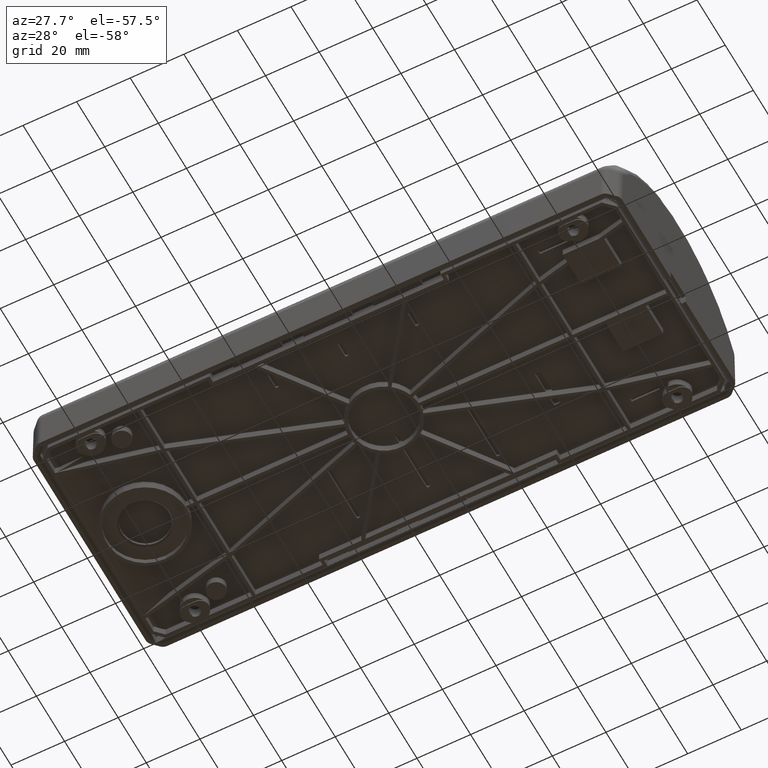
[diagram: clean part render]
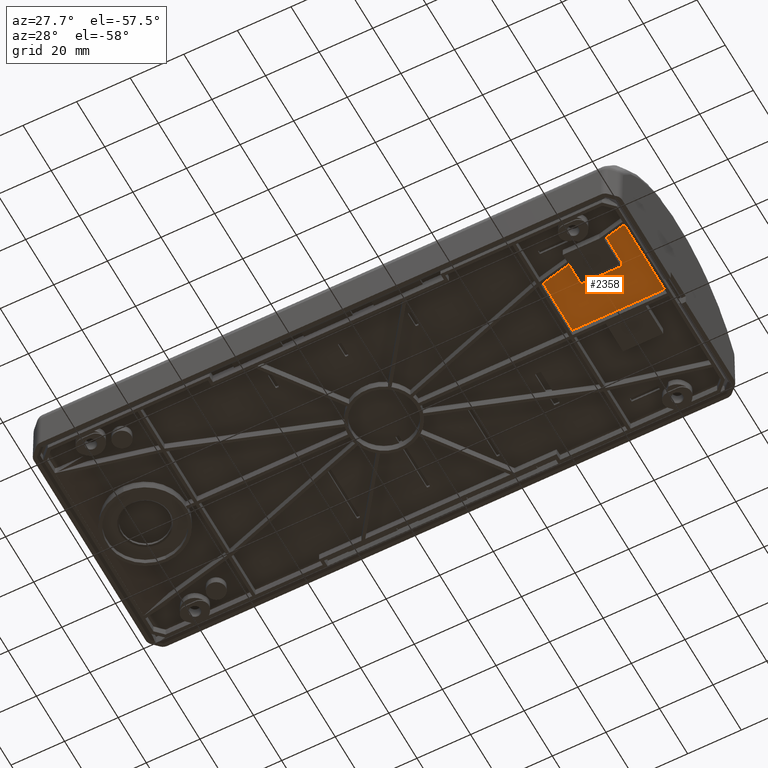
[diagram: same view with one face highlighted and labeled with its STEP entity id]
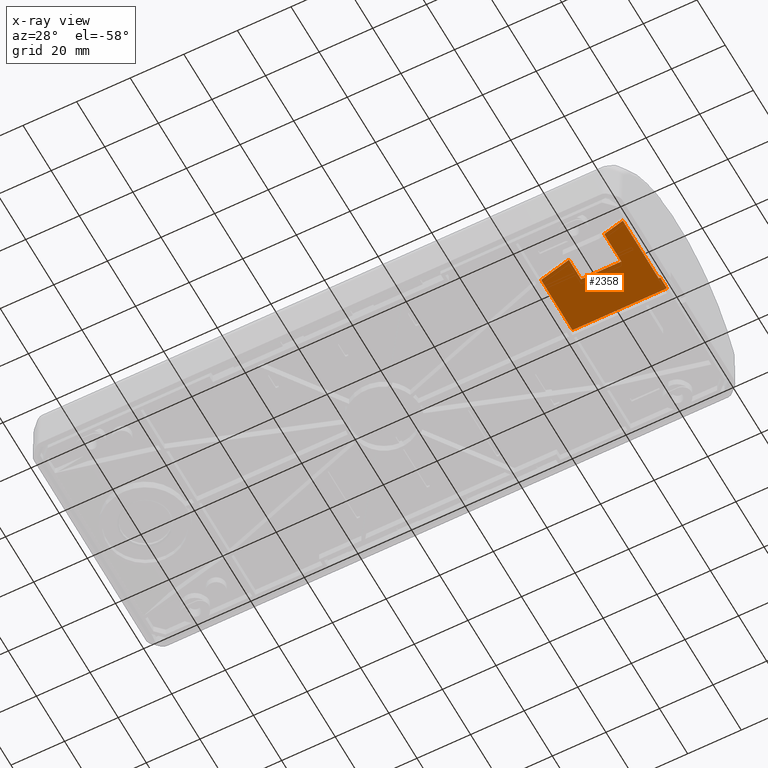
[diagram: x-ray of the same camera — body ghosted, the highlighted face saturated]
A machine part, auxiliary view. The second image highlights one B-rep face of the part: STEP entity #2358.
The next image is the same camera in x-ray: the body ghosted, the highlighted face saturated — about 0% of this face is hidden behind the body in this view.
In plain terms, the highlighted planar face has unit normal (0, 0, -1).
Its self-contained STEP definition (entity closure, byte-faithful):
#2358=ADVANCED_FACE('',(#3582),#2804,.T.);
#2804=PLANE('',#15451);
#3582=FACE_OUTER_BOUND('',#4422,.T.);
#4422=EDGE_LOOP('',(#7901,#7902,#7903,#7904,#7905,#7906,#7907,#7908,#7909,
#7910));
#7901=ORIENTED_EDGE('',*,*,#12124,.F.);
#7902=ORIENTED_EDGE('',*,*,#12125,.T.);
#7903=ORIENTED_EDGE('',*,*,#12126,.F.);
#7904=ORIENTED_EDGE('',*,*,#12113,.F.);
#7905=ORIENTED_EDGE('',*,*,#12110,.F.);
#7906=ORIENTED_EDGE('',*,*,#12107,.F.);
#7907=ORIENTED_EDGE('',*,*,#12104,.F.);
#7908=ORIENTED_EDGE('',*,*,#12100,.F.);
#7909=ORIENTED_EDGE('',*,*,#12116,.F.);
#7910=ORIENTED_EDGE('',*,*,#12122,.F.);
#10112=VERTEX_POINT('',#40678);
#10113=VERTEX_POINT('',#40679);
#10116=VERTEX_POINT('',#40687);
#10118=VERTEX_POINT('',#40693);
#10120=VERTEX_POINT('',#40699);
#10122=VERTEX_POINT('',#40705);
#10124=VERTEX_POINT('',#40711);
#10129=VERTEX_POINT('',#40722);
#10130=VERTEX_POINT('',#40727);
#10131=VERTEX_POINT('',#40729);
#12100=EDGE_CURVE('',#10112,#10113,#13182,.T.);
#12104=EDGE_CURVE('',#10113,#10116,#13186,.T.);
#12107=EDGE_CURVE('',#10116,#10118,#13189,.T.);
#12110=EDGE_CURVE('',#10118,#10120,#13192,.T.);
#12113=EDGE_CURVE('',#10120,#10122,#13195,.T.);
#12116=EDGE_CURVE('',#10124,#10112,#13198,.T.);
#12122=EDGE_CURVE('',#10129,#10124,#13204,.T.);
#12124=EDGE_CURVE('',#10130,#10129,#13206,.T.);
#12125=EDGE_CURVE('',#10130,#10131,#13207,.T.);
#12126=EDGE_CURVE('',#10122,#10131,#13208,.T.);
#13182=LINE('',#40677,#14221);
#13186=LINE('',#40686,#14225);
#13189=LINE('',#40692,#14228);
#13192=LINE('',#40698,#14231);
#13195=LINE('',#40704,#14234);
#13198=LINE('',#40710,#14237);
#13204=LINE('',#40723,#14243);
#13206=LINE('',#40726,#14245);
#13207=LINE('',#40728,#14246);
#13208=LINE('',#40730,#14247);
#14221=VECTOR('',#18275,1.);
#14225=VECTOR('',#18281,1.);
#14228=VECTOR('',#18286,1.);
#14231=VECTOR('',#18291,1.);
#14234=VECTOR('',#18296,1.);
#14237=VECTOR('',#18301,1.);
#14243=VECTOR('',#18309,1.);
#14245=VECTOR('',#18313,1.);
#14246=VECTOR('',#18314,1.);
#14247=VECTOR('',#18315,1.);
#15451=AXIS2_PLACEMENT_3D('',#40731,#18316,#18317);
#18275=DIRECTION('',(0.,-1.,0.));
#18281=DIRECTION('',(0.974370064785235,-0.224951054343865,0.));
#18286=DIRECTION('',(0.,1.,0.));
#18291=DIRECTION('',(1.,0.,0.));
#18296=DIRECTION('',(0.,-1.,0.));
#18301=DIRECTION('',(-1.,0.,0.));
#18309=DIRECTION('',(0.,1.,0.));
#18313=DIRECTION('',(1.,0.,0.));
#18314=DIRECTION('',(0.,-1.,0.));
#18315=DIRECTION('',(0.974370064785235,-0.224951054343866,0.));
#18316=DIRECTION('',(0.,0.,-1.));
#18317=DIRECTION('',(0.,1.,0.));
#40677=CARTESIAN_POINT('',(121.300000000002,-0.598476139256033,4.25));
#40678=CARTESIAN_POINT('',(121.300000000002,-0.598476139256033,4.25));
#40679=CARTESIAN_POINT('',(121.300000000002,-22.7984761392561,4.25));
#40686=CARTESIAN_POINT('',(121.300000000002,-22.7984761392561,4.25));
#40687=CARTESIAN_POINT('',(133.100000000002,-25.5227207945377,4.25));
#40692=CARTESIAN_POINT('',(133.100000000002,-25.5227207945377,4.25));
#40693=CARTESIAN_POINT('',(133.100000000002,-16.8984761392561,4.25));
#40698=CARTESIAN_POINT('',(133.100000000002,-16.8984761392561,4.25));
#40699=CARTESIAN_POINT('',(148.100000000002,-16.8984761392561,4.25));
#40704=CARTESIAN_POINT('',(148.100000000002,-16.8984761392561,4.25));
#40705=CARTESIAN_POINT('',(148.100000000002,-28.9857436614212,4.25));
#40710=CARTESIAN_POINT('',(156.600000000002,-0.598476139256033,4.25));
#40711=CARTESIAN_POINT('',(156.600000000002,-0.598476139256033,4.25));
#40722=CARTESIAN_POINT('',(156.600000000002,-5.29847613925607,4.25));
#40723=CARTESIAN_POINT('',(156.600000000002,-30.9481232859885,4.25));
#40726=CARTESIAN_POINT('',(160.500000000002,-5.29847613925607,4.25));
#40727=CARTESIAN_POINT('',(156.000000000003,-5.29847613925607,4.25));
#40728=CARTESIAN_POINT('',(156.000000000003,21.2515238607439,4.25));
#40729=CARTESIAN_POINT('',(156.000000000003,-30.8096023713131,4.25));
#40730=CARTESIAN_POINT('',(148.100000000002,-28.9857436614212,4.25));
#40731=CARTESIAN_POINT('',(138.664429400728,0.00152386074391518,4.25));